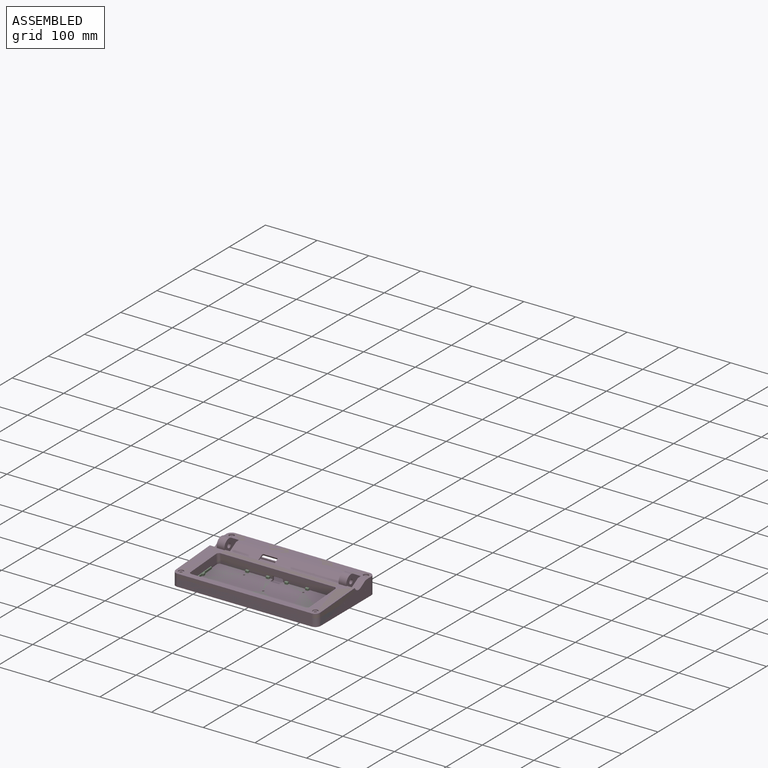
[diagram: assembled view]
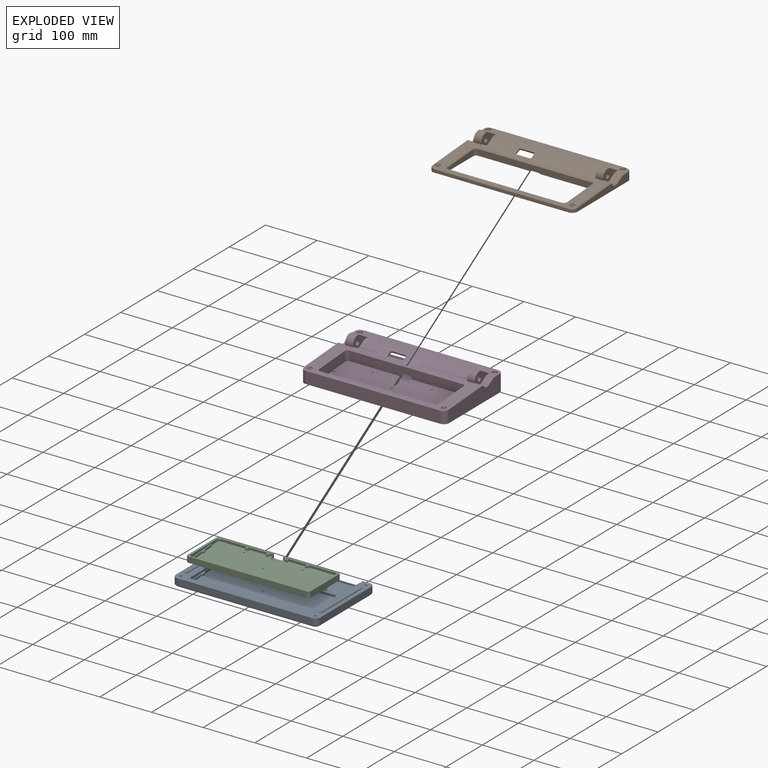
[diagram: exploded view]
GUIDED TOUR — FREECAD ASSEMBLY "BottomEnclosure_base_split_v2"

This assembly has 4 components, labeled P0..P3 below (a component is one placed body or linked part; the same part can appear more than once), held together by 0 modeled joints plus 6 derived contact edges. A joint is a constraint between two components; its type names the relative motion it leaves free:
  CONTACT — a derived adjacency edge — the two components touch in the source model (clearance under 2% of the assembly's diagonal); it is measured from the geometry, not a modeled constraint.
Axis/direction vectors are unit vectors and 'through' points are millimeter coordinates, both in the assembly's world frame.

MATES
  1. CONTACT "contact_0_1": P0 <-> P1, contact direction (0.000, 0.851, 0.525) through (131.84, -91.54, 15.00) mm (derived from contact, not a modeled constraint)
  2. CONTACT "contact_0_2": P0 <-> P2, contact direction (0.000, -1.000, 0.000) through (113.46, -87.52, 15.00) mm (derived from contact, not a modeled constraint)
  3. CONTACT "contact_0_3": P0 <-> P3, contact direction (0.000, -0.525, 0.851) through (-10.00, -4.50, 14.65) mm (derived from contact, not a modeled constraint)
  4. CONTACT "contact_1_2": P1 <-> P2, contact direction (0.000, -0.851, -0.525) through (-9.90, -8.22, 15.00) mm (derived from contact, not a modeled constraint)
  5. CONTACT "contact_1_3": P1 <-> P3, contact direction (0.000, -0.851, -0.525) through (-8.00, -8.31, 16.39) mm (derived from contact, not a modeled constraint)
  6. CONTACT "contact_2_3": P2 <-> P3, contact direction (0.000, 0.851, 0.525) through (-9.90, -4.50, 8.01) mm (derived from contact, not a modeled constraint)

ASSEMBLY ORDER
  1. P0 — the base component [order heuristic]
  2. P3 — core [order heuristic]
  3. P2 [order verified]
  4. P1 — core [order heuristic]
(P2 verified with a relaxed clearance tolerance: the source model stores slight part interference there.)
Order-tag legend:
  [order verified] — this step's position reverses a verified removal order: the component was checked to insert without passing through the ones already placed.
  [order heuristic] — the first 3 components form the assembly's core: parts whose collision-free extraction could not be verified, listed in mate-graph order.

Of the 4 components, 4 carry a construction recipe — the FreeCAD feature program (sketches with constraints, then the solid features that consume them) that regenerates the part from scratch, quoted from this document or from the linked companion document it references; the rest are supplied as boundary geometry only. The tour below walks the components in assembly order: each is shown spotlighted twice — in the assembled view, then in the exploded view, where a leader line traces a displaced component back to its assembled socket (components that stay in place when exploded have no leader line; saturated green if recipe-attached, orange if geometry-only; every other component desaturated gray) — followed by its recipe or geometry summary and the mates that hold it.
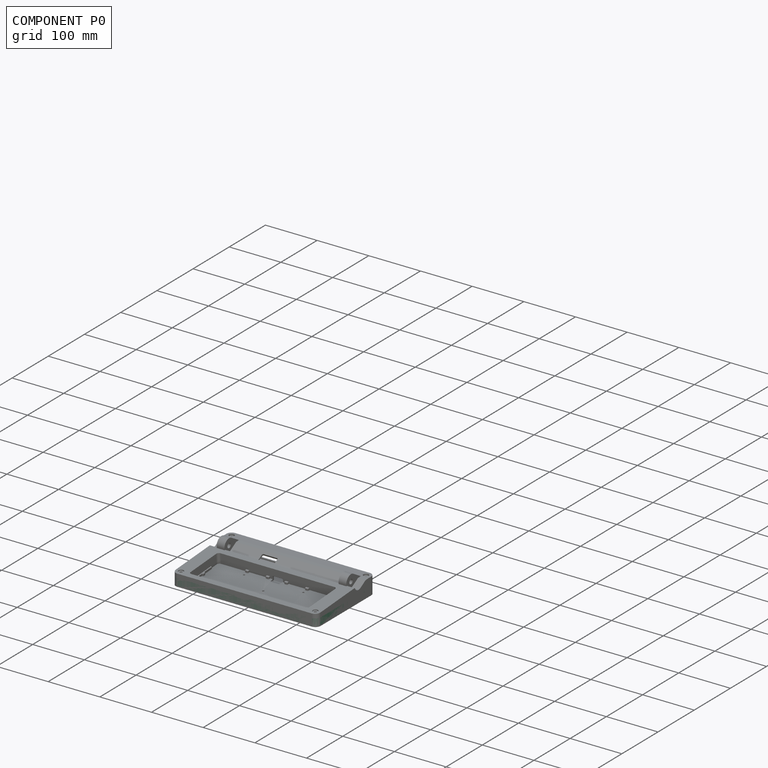
[diagram: component P0 — assembled]
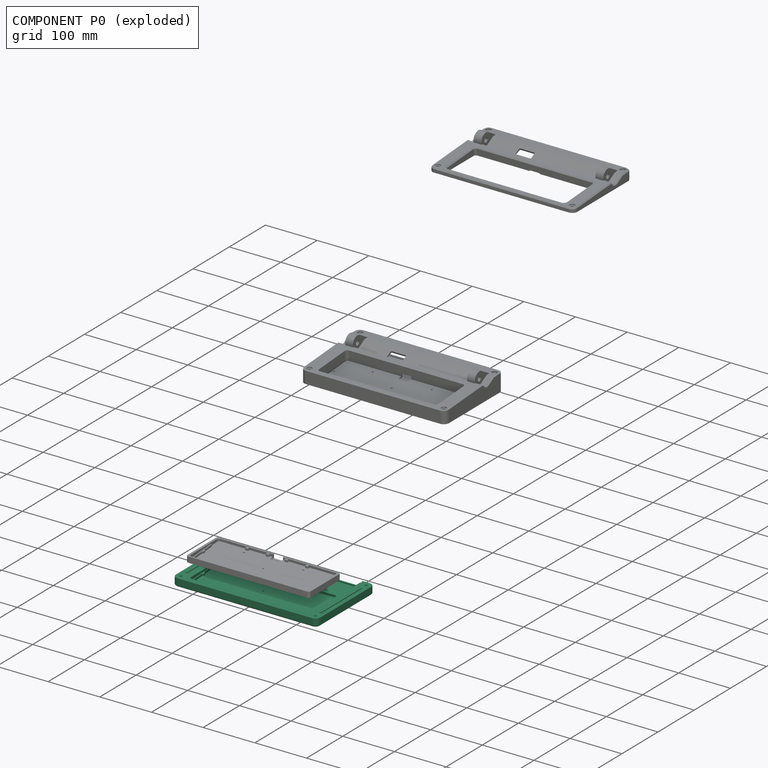
[diagram: component P0 — exploded]
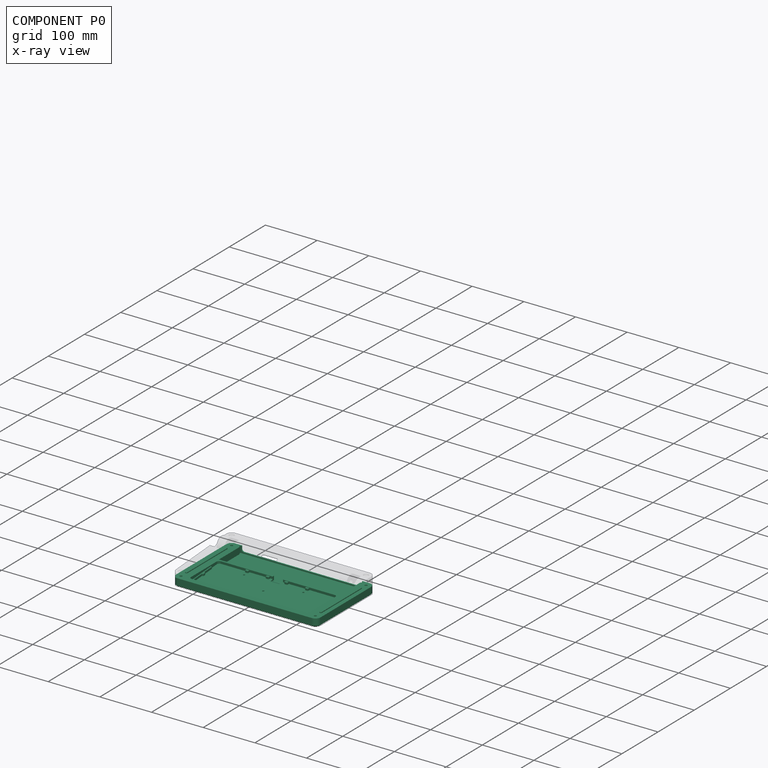
[diagram: component P0 — x-ray view]
COMPONENT P0 — recipe-attached ("Bottom", modeled in this document).
Held by: resting contact with P1 (derived edge); resting contact with P2 (derived edge); resting contact with P3 (derived edge).
Construction recipe (the document's own serialized feature program — sketch geometry with constraints, then the solid features built on it; lengths are millimeters unless a unit is written):

FEATURE [PartDesign::FeatureBase] BaseFeature
  BaseFeature = -> Slice_child0
  Suppressed = false
FEATURE [PartDesign::Chamfer] Chamfer
  Angle = 45
  Base = -> BaseFeature [Edge112]
  BaseFeature = -> BaseFeature
  ChamferType = 0
  FlipDirection = false
  Refine = true
  Size = 2
  Size2 = 1
  SupportTransform = false
  Suppressed = false
  UseAllEdges = false
FEATURE [Sketcher::SketchObject] Sketch001
  ArcFitTolerance = 1e-06
  AttachmentOffset = pos=(0,0,15) rot=(0,0,1;0rad)
  AttachmentSupport = -> [XY_Plane001]
  ExternalGeometry = -> [Chamfer]
  FullyConstrained = true
  MakeInternals = false
  MapMode = 5
  Placement = pos=(0,0,15) rot=(0,0,1;0rad)
  expr: .AttachmentOffset.Base.z = <<LocalVars>>.SplitHeight
  sketch-geometry (4):
    g0: ArcOfCircle CenterX=-130 CenterY=35 CenterZ=0 NormalX=0 NormalY=0 NormalZ=1 AngleXU=0 Radius=2 StartAngle=5e-16 EndAngle=3.14159
    g1: ArcOfCircle CenterX=-130 CenterY=-75 CenterZ=0 NormalX=0 NormalY=0 NormalZ=1 AngleXU=0 Radius=2 StartAngle=3.14159 EndAngle=6.28319
    g2: LineSegment StartX=-128 StartY=35 StartZ=0 EndX=-128 EndY=-75 EndZ=0
    g3: LineSegment StartX=-132 StartY=35 StartZ=0 EndX=-132 EndY=-75 EndZ=0
  constraints (10):
    c: Tangent(g0,g2) = 1.5708
    c: Tangent(g0,g3) = -1.5708
    c: Tangent(g1,g2) = 1.5708
    c: Tangent(g1,g3) = -1.5708
    c: Equal(g0,g1)
    c: Radius(g0) = 2
    c: Vertical(g2)
    c: DistanceY(g-4,g1) = 15
    c: Vertical(g-4,g1)
    c: DistanceY(g0,g-3) = 15
FEATURE [PartDesign::Pad] Pad
  BaseFeature = -> Chamfer
  Direction = (0,0,1)
  Length = 2
  Length2 = 10
  Profile = -> Sketch001
  ReferenceAxis = -> Sketch001 [N_Axis]
  Refine = true
  Suppressed = false
  Type = 0
FEATURE [PartDesign::Chamfer] Chamfer002
  Angle = 45
  Base = -> Pad [Edge171]
  BaseFeature = -> Pad
  ChamferType = 0
  FlipDirection = false
  Refine = true
  Size = 0.5
  Size2 = 1
  SupportTransform = false
  Suppressed = false
  UseAllEdges = false
FEATURE [PartDesign::Mirrored] Mirrored
  BaseFeature = -> Chamfer002
  MirrorPlane = -> YZ_Plane001
  Originals = -> [Pad,Chamfer002]
  Refine = true
  Suppressed = false
  TransformMode = 0
FEATURE [PartDesign::SubShapeBinder] Binder
  BindCopyOnChange = 0
  BindMode = 0
  ClaimChildren = false
  Context = -> Body001 [Binder.]
  Fuse = false
  MakeFace = true
  OffsetFill = false
  OffsetIntersection = false
  OffsetJoinType = 0
  OffsetOpenResult = false
  PartialLoad = false
  Refine = true
  Relative = true
  Support = -> [Mirrored[Edge176,Edge174,Edge171,Edge172]]
  _Version = 2
FEATURE [Sketcher::SketchObject] Sketch003
  ArcFitTolerance = 1e-06
  AttachmentSupport = -> [Mirrored]
  ExternalGeometry = -> [Mirrored]
  FullyConstrained = true
  MakeInternals = false
  MapMode = 5
  Placement = pos=(0,-0.762224,10.9003) rot=(1,0,0;0.069813rad)
  sketch-geometry (39):
    g0: LineSegment StartX=-115 StartY=-27.6515 StartZ=0 EndX=-115 EndY=-82.6515 EndZ=0
    g1: LineSegment StartX=-114 StartY=-27.6515 StartZ=0 EndX=-115 EndY=-27.6515 EndZ=0
    g2: LineSegment StartX=-35 StartY=-87.6515 StartZ=0 EndX=-35 EndY=-84.1515 EndZ=0
    g3: LineSegment StartX=-110 StartY=-87.6515 StartZ=0 EndX=-35 EndY=-87.6515 EndZ=0
    g4: LineSegment StartX=-113 StartY=-82.1515 StartZ=0 EndX=-113 EndY=-56.4015 EndZ=0
    g5: ArcOfCircle CenterX=-110 CenterY=-82.6515 CenterZ=0 NormalX=0 NormalY=0 NormalZ=1 AngleXU=0 Radius=5 StartAngle=3.14159 EndAngle=4.71239
    g6: ArcOfCircle CenterX=-114 CenterY=-28.6515 CenterZ=0 NormalX=0 NormalY=0 NormalZ=1 AngleXU=0 Radius=1 StartAngle=1.5e-15 EndAngle=1.5708
    g7: GeomPoint [constr] X=-113 Y=-27.6515 Z=0
    g8: ArcOfCircle CenterX=-36 CenterY=-84.1515 CenterZ=0 NormalX=0 NormalY=0 NormalZ=1 AngleXU=0 Radius=1 StartAngle=-6.2e-15 EndAngle=1.5708
    g9: LineSegment StartX=-36 StartY=-83.1515 StartZ=0 EndX=-112 EndY=-83.1515 EndZ=0
    g10: ArcOfCircle CenterX=-112 CenterY=-82.1515 CenterZ=0 NormalX=0 NormalY=0 NormalZ=1 AngleXU=0 Radius=1 StartAngle=3.14159 EndAngle=4.71239
    g11: LineSegment StartX=-21 StartY=-7.1515 StartZ=0 EndX=-15 EndY=-7.1515 EndZ=0
    g12: LineSegment StartX=-21 StartY=-7.1515 StartZ=0 EndX=-21 EndY=-10.1515 EndZ=0
    g13: LineSegment StartX=-20 StartY=-11.1515 StartZ=0 EndX=-16 EndY=-11.1515 EndZ=0
    g14: LineSegment StartX=-15 StartY=-10.1515 StartZ=0 EndX=-15 EndY=-7.1515 EndZ=0
    g15: ArcOfCircle CenterX=-20 CenterY=-10.1515 CenterZ=0 NormalX=0 NormalY=0 NormalZ=1 AngleXU=0 Radius=1 StartAngle=3.14159 EndAngle=4.71239
    g16: GeomPoint [constr] X=-21 Y=-11.1515 Z=0
    g17: ArcOfCircle CenterX=-16 CenterY=-10.1515 CenterZ=0 NormalX=0 NormalY=0 NormalZ=1 AngleXU=0 Radius=1 StartAngle=4.71239 EndAngle=6.28319
    g18: GeomPoint [constr] X=-15 Y=-11.1515 Z=0
    g19: LineSegment StartX=-110.5 StartY=-50.4015 StartZ=0 EndX=-110.5 EndY=-54.4015 EndZ=0
    g20: LineSegment StartX=-113 StartY=-48.4015 StartZ=0 EndX=-113 EndY=-28.6515 EndZ=0
    g21: ArcOfCircle CenterX=-111.5 CenterY=-50.4015 CenterZ=0 NormalX=0 NormalY=0 NormalZ=1 AngleXU=0 Radius=1 StartAngle=-3.064e-13 EndAngle=1.5708
    g22: ArcOfCircle CenterX=-111.5 CenterY=-54.4015 CenterZ=0 NormalX=0 NormalY=0 NormalZ=1 AngleXU=0 Radius=1 StartAngle=4.71239 EndAngle=6.28319
    g23: LineSegment StartX=-112 StartY=-49.4015 StartZ=0 EndX=-111.5 EndY=-49.4015 EndZ=0
    g24: LineSegment StartX=-112 StartY=-55.4015 StartZ=0 EndX=-111.5 EndY=-55.4015 EndZ=0
    g25: ArcOfCircle CenterX=-112 CenterY=-56.4015 CenterZ=0 NormalX=0 NormalY=0 NormalZ=1 AngleXU=0 Radius=1 StartAngle=1.5708 EndAngle=3.14159
    g26: GeomPoint [constr] X=-113 Y=-55.4015 Z=0
    g27: ArcOfCircle CenterX=-112 CenterY=-48.4015 CenterZ=0 NormalX=0 NormalY=0 NormalZ=1 AngleXU=0 Radius=1 StartAngle=3.14159 EndAngle=4.71239
    g28: GeomPoint [constr] X=-113 Y=-49.4015 Z=0
    g29: GeomPoint X=-18 Y=-7.1515 Z=0
    g30: LineSegment StartX=-61 StartY=-7.1515 StartZ=0 EndX=-55 EndY=-7.1515 EndZ=0
    g31: LineSegment StartX=-61 StartY=-7.1515 StartZ=0 EndX=-61 EndY=-10.1515 EndZ=0
    g32: LineSegment StartX=-60 StartY=-11.1515 StartZ=0 EndX=-56 EndY=-11.1515 EndZ=0
    g33: LineSegment StartX=-55 StartY=-10.1515 StartZ=0 EndX=-55 EndY=-7.1515 EndZ=0
    g34: ArcOfCircle CenterX=-60 CenterY=-10.1515 CenterZ=0 NormalX=0 NormalY=0 NormalZ=1 AngleXU=0 Radius=1 StartAngle=3.14159 EndAngle=4.71239
    g35: GeomPoint [constr] X=-61 Y=-11.1515 Z=0
    g36: ArcOfCircle CenterX=-56 CenterY=-10.1515 CenterZ=0 NormalX=0 NormalY=0 NormalZ=1 AngleXU=0 Radius=1 StartAngle=4.71239 EndAngle=6.28319
    g37: GeomPoint [constr] X=-55 Y=-11.1515 Z=0
    g38: GeomPoint X=-58 Y=-7.1515 Z=0
  constraints (92):
    c: Coincident(g1,g0)
    c: Vertical(g0)
    c: Horizontal(g1)
    c: Coincident(g3,g2)
    c: Vertical(g2)
    c: Coincident(g3,g-4)
    c: Coincident(g0,g-3)
    c: Tangent(g5,g3) = -1.5708
    c: Tangent(g5,g0) = -1.5708
    c: PointOnObject(g7,g1)
    c: PointOnObject(g7,g20)
    c: Tangent(g1,g6) = -1.5708
    c: Tangent(g2,g8) = -1.5708
    c: Vertical(g4)
    c: Horizontal(g9)
    c: DistanceX(g0,g7) = 2
    c: Radius(g6) = 1
    c: Equal(g6,g8)
    c: DistanceY(g3,g0) = 60
    c: Tangent(g9,g8) = -1.5708
    c: DistanceY(g2,g8) = 4.5
    c: Tangent(g10,g9) = 1.5708
    c: Tangent(g10,g4) = 1.5708
    c: Radius(g10) = 1
    c: DistanceX(g0,g2) = 80
    c: PointOnObject(g11,g-5)
    c: PointOnObject(g11,g-5)
    c: Coincident(g12,g11)
    c: Vertical(g12)
    c: Horizontal(g13)
    c: Coincident(g14,g11)
    c: Vertical(g14)
    c: PointOnObject(g16,g12)
    c: PointOnObject(g16,g13)
    c: Tangent(g12,g15) = -1.5708
    c: Tangent(g13,g15) = -1.5708
    c: PointOnObject(g18,g13)
    c: PointOnObject(g18,g14)
    c: Tangent(g13,g17) = -1.5708
    c: Tangent(g14,g17) = -1.5708
    c: Equal(g17,g15)
    c: Radius(g17) = 1
    c: DistanceY(g13,g11) = 4
    c: Vertical(g19)
    c: Vertical(g20)
    c: Tangent(g19,g21) = 1.5708
    c: Tangent(g19,g22) = 1.5708
    c: Equal(g22,g21)
    c: Radius(g22) = 1
    c: Tangent(g20,g6) = -1.5708
    c: Vertical(g28,g26)
    c: Horizontal(g24)
    c: Tangent(g24,g22) = -1.5708
    c: Tangent(g23,g21) = 1.5708
    c: Horizontal(g23)
    c: DistanceY(g28,g-6) = 2
    c: DistanceX(g0,g19) = 4.5
    c: DistanceY(g26,g28) = 6
    c: PointOnObject(g26,g4)
    c: PointOnObject(g26,g24)
    c: Tangent(g4,g25) = 1.5708
    c: Tangent(g24,g25) = 1.5708
    c: PointOnObject(g28,g20)
    c: PointOnObject(g28,g23)
    c: Tangent(g20,g27) = 1.5708
    c: Tangent(g23,g27) = -1.5708
    c: Equal(g27,g21)
    c: Equal(g22,g25)
    c: Symmetric(g11,g11,g29)
    c: DistanceX(g29,g-1) = 18
    c: DistanceX(g11,g11) = 6
    c: Coincident(g31,g30)
    c: Vertical(g31)
    c: Horizontal(g32)
    c: Coincident(g33,g30)
    c: Vertical(g33)
    c: PointOnObject(g35,g31)
    c: PointOnObject(g35,g32)
    c: Tangent(g31,g34) = -1.5708
    c: Tangent(g32,g34) = -1.5708
    c: PointOnObject(g37,g32)
    c: PointOnObject(g37,g33)
    c: Tangent(g32,g36) = -1.5708
    c: Tangent(g33,g36) = -1.5708
    c: Equal(g36,g34)
    c: Radius(g36) = 1
    c: DistanceY(g32,g30) = 4
    c: Symmetric(g30,g30,g38)
    c: DistanceX(g38,g-1) = 58
    c: DistanceX(g30,g30) = 6
    c: PointOnObject(g30,g-5)
    c: PointOnObject(g30,g-5)
FEATURE [PartDesign::Pad] Pad001
  BaseFeature = -> Mirrored
  Direction = (0,-0.0697565,0.997564)
  Length = 10
  Length2 = 10
  Profile = -> Binder
  Refine = true
  Reversed = true
  Suppressed = false
  Type = 1
FEATURE [PartDesign::Pad] Pad002
  BaseFeature = -> Pad001
  Direction = (0,-0.0697565,0.997564)
  Length = 3.8
  Length2 = 10
  Profile = -> Sketch003
  ReferenceAxis = -> Sketch003 [N_Axis]
  Refine = true
  Suppressed = false
  Type = 0
  expr: Length = 4 - 0.2
FEATURE [PartDesign::Mirrored] Mirrored002
  BaseFeature = -> Pad002
  MirrorPlane = -> YZ_Plane001
  Originals = -> [Pad002]
  Refine = true
  Suppressed = false
  TransformMode = 0
FEATURE [PartDesign::Body] Body001  label="Bottom"
  AllowCompound = false
  BaseFeature = -> Slice_child0
  Group = -> [BaseFeature,Chamfer,Sketch001,Pad,Chamfer002,Mirrored,Binder,Sketch003,Pad001,Pad002,Mirrored002]
  Origin = -> Origin001
  Tip = -> Mirrored002
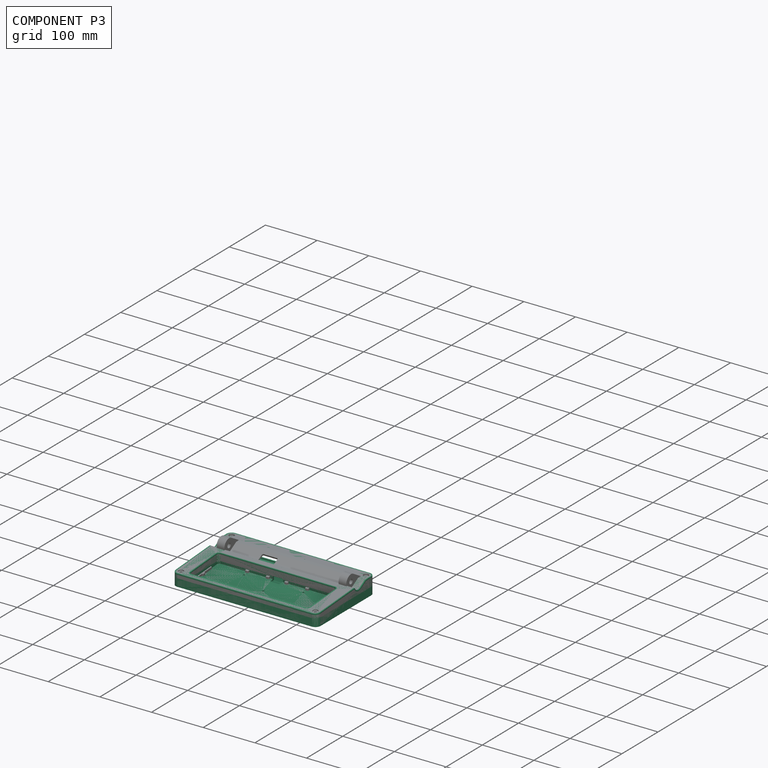
[diagram: component P3 — assembled]
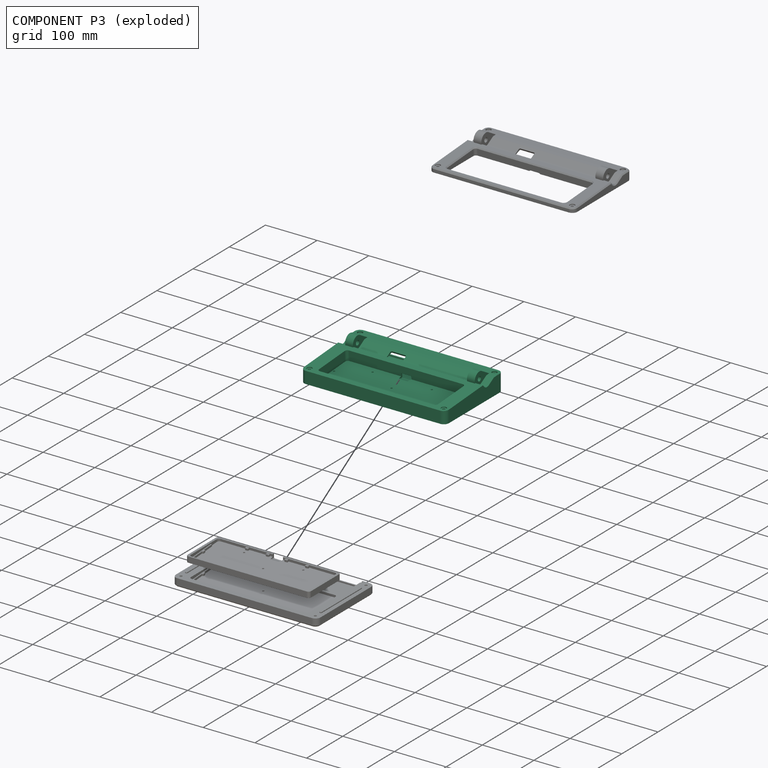
[diagram: component P3 — exploded]
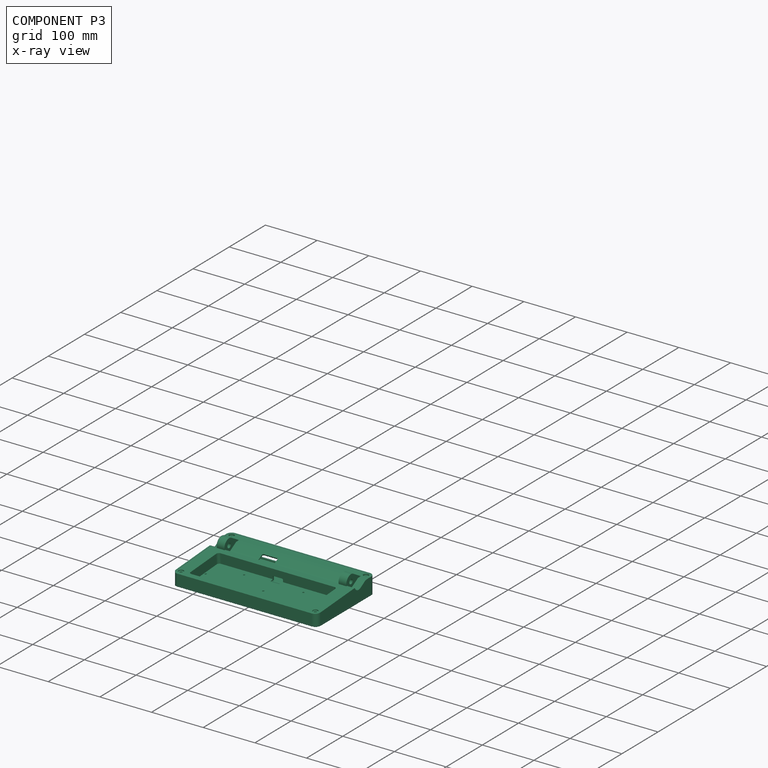
[diagram: component P3 — x-ray view]
COMPONENT P3 — recipe-attached ("Bottom Enclosure - AIR40", modeled in this document).
Held by: resting contact with P0 (derived edge); resting contact with P1 (derived edge); resting contact with P2 (derived edge).
Construction recipe (the document's own serialized feature program — sketch geometry with constraints, then the solid features built on it; lengths are millimeters unless a unit is written):

FEATURE [Sketcher::SketchObject] Sketch
  ArcFitTolerance = 1e-06
  AttachmentSupport = -> [YZ_Plane]
  FullyConstrained = true
  MakeInternals = false
  MapMode = 5
  Placement = pos=(0,0,0) rot=(0.57735,0.57735,0.57735;2.0944rad)
  expr: Constraints[1] = <<LocalVars>>.SplitHeight
  sketch-geometry (1):
    g0: LineSegment StartX=-150 StartY=15 StartZ=0 EndX=150 EndY=15 EndZ=0
  constraints (3):
    c: Symmetric(g0,g0,g-2)
    c: DistanceY(g-1,g0) = 15
    c: DistanceX(g0,g0) = 300
FEATURE [PartDesign::Body] Body  label="Bottom Enclosure Split Line"
  AllowCompound = false
  Group = -> [Sketch]
  Origin = -> Origin
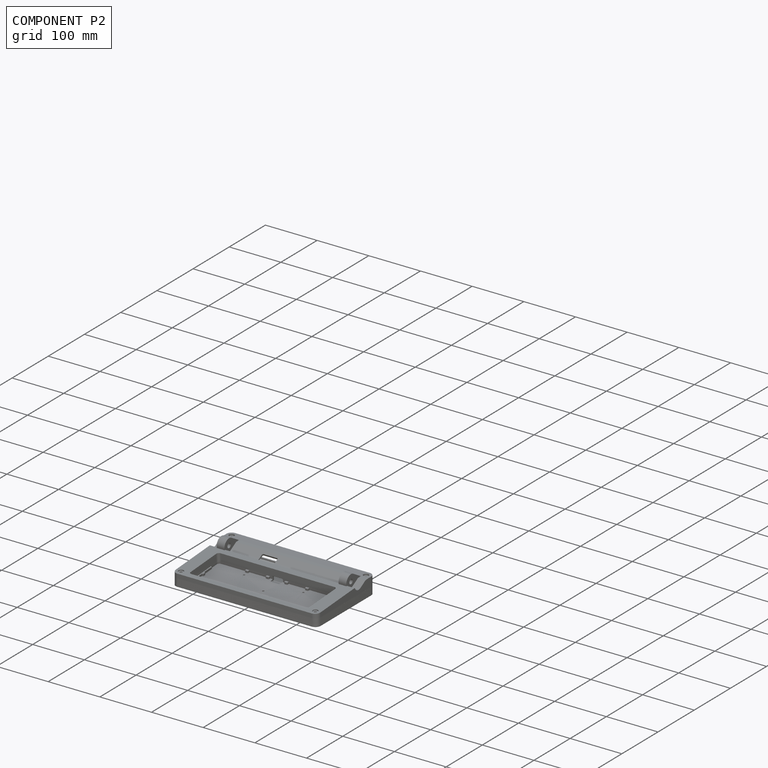
[diagram: component P2 — assembled]
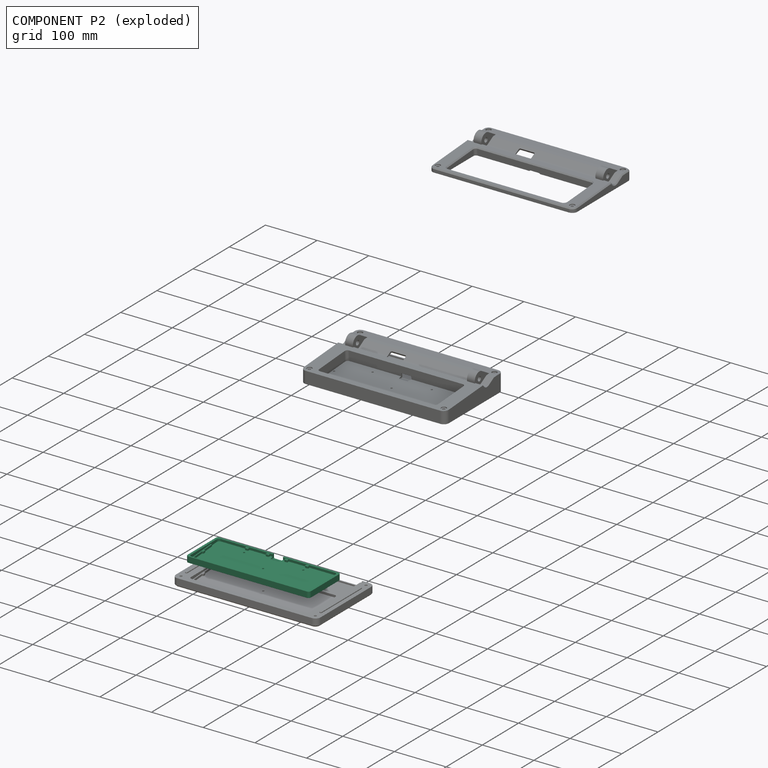
[diagram: component P2 — exploded]
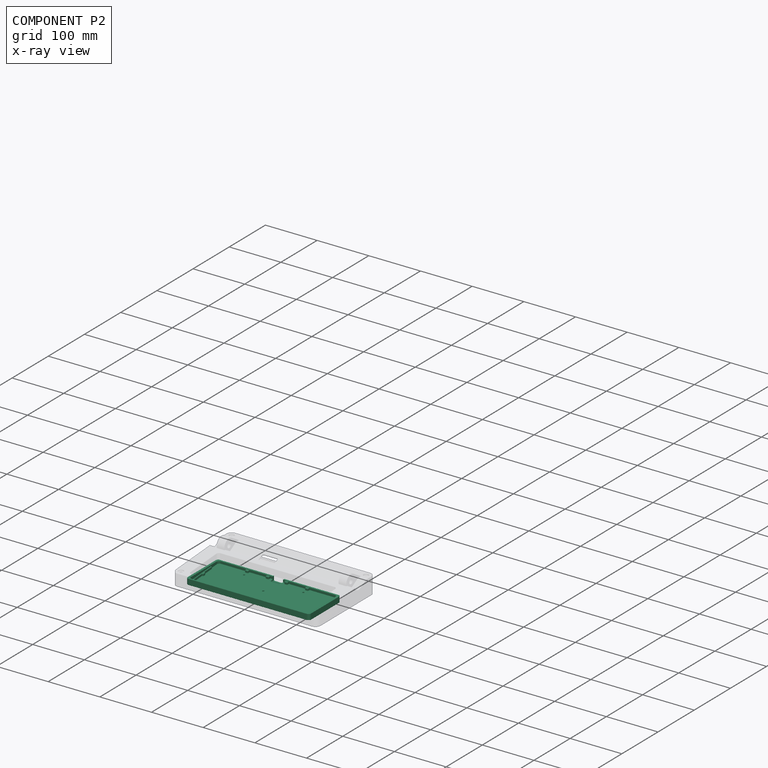
[diagram: component P2 — x-ray view]
COMPONENT P2 — recipe-attached ("ToPrint", modeled in this document).
Held by: resting contact with P0 (derived edge); resting contact with P1 (derived edge); resting contact with P3 (derived edge).
Construction recipe (the document's own serialized feature program — sketch geometry with constraints, then the solid features built on it; lengths are millimeters unless a unit is written):

FEATURE [PartDesign::Boolean] Boolean
  Group = -> [Binder001]
  Refine = true
  Suppressed = false
  Type = 0
  UsePlacement = true
FEATURE [Sketcher::SketchObject] Sketch004
  ArcFitTolerance = 1e-06
  AttachmentSupport = -> [XY_Plane003]
  FullyConstrained = false
  MakeInternals = false
  MapMode = 5
  sketch-geometry (18):
    g0: LineSegment StartX=-114.315 StartY=-91.6893 StartZ=0 EndX=114.315 EndY=-91.6893 EndZ=0
    g1: LineSegment StartX=119.315 StartY=-86.6893 StartZ=0 EndX=119.315 EndY=-9.14936 EndZ=0
    g2: LineSegment StartX=114.315 StartY=-4.14936 StartZ=0 EndX=-114.315 EndY=-4.14936 EndZ=0
    g3: LineSegment StartX=-119.315 StartY=-9.14936 StartZ=0 EndX=-119.315 EndY=-86.6893 EndZ=0
    g4: GeomPoint [constr] X=0 Y=-47.9193 Z=0
    g5: ArcOfCircle CenterX=-114.315 CenterY=-9.14936 CenterZ=0 NormalX=0 NormalY=0 NormalZ=1 AngleXU=0 Radius=5 StartAngle=1.5708 EndAngle=3.14159
    g6: GeomPoint [constr] X=-119.315 Y=-4.14936 Z=0
    g7: ArcOfCircle CenterX=-114.315 CenterY=-86.6893 CenterZ=0 NormalX=0 NormalY=0 NormalZ=1 AngleXU=0 Radius=5 StartAngle=3.14159 EndAngle=4.71239
    g8: GeomPoint [constr] X=-119.315 Y=-91.6893 Z=0
    g9: ArcOfCircle CenterX=114.315 CenterY=-86.6893 CenterZ=0 NormalX=0 NormalY=0 NormalZ=1 AngleXU=0 Radius=5 StartAngle=4.71239 EndAngle=6.28319
    g10: GeomPoint [constr] X=119.315 Y=-91.6893 Z=0
    g11: ArcOfCircle CenterX=114.315 CenterY=-9.14936 CenterZ=0 NormalX=0 NormalY=0 NormalZ=1 AngleXU=0 Radius=5 StartAngle=0 EndAngle=1.5708
    g12: GeomPoint [constr] X=119.315 Y=-4.14936 Z=0
    g13: LineSegment StartX=-149.795 StartY=-129.971 StartZ=0 EndX=149.795 EndY=-129.971 EndZ=0
    g14: LineSegment StartX=149.795 StartY=-129.971 StartZ=0 EndX=149.795 EndY=78.3938 EndZ=0
    g15: LineSegment StartX=149.795 StartY=78.3938 StartZ=0 EndX=-149.795 EndY=78.3938 EndZ=0
    g16: LineSegment StartX=-149.795 StartY=78.3938 StartZ=0 EndX=-149.795 EndY=-129.971 EndZ=0
    g17: GeomPoint [constr] X=0 Y=-25.7888 Z=0
  constraints (36):
    c: Horizontal(g0)
    c: Horizontal(g2)
    c: Vertical(g1)
    c: Vertical(g3)
    c: Symmetric(g12,g8,g4)
    c: PointOnObject(g4,g-2)
    c: PointOnObject(g6,g2)
    c: PointOnObject(g6,g3)
    c: Tangent(g2,g5) = -1.5708
    c: Tangent(g3,g5) = -1.5708
    c: PointOnObject(g8,g0)
    c: PointOnObject(g8,g3)
    c: Tangent(g0,g7) = -1.5708
    c: Tangent(g3,g7) = -1.5708
    c: PointOnObject(g10,g0)
    c: PointOnObject(g10,g1)
    c: Tangent(g0,g9) = -1.5708
    c: Tangent(g1,g9) = -1.5708
    c: PointOnObject(g12,g1)
    c: PointOnObject(g12,g2)
    c: Tangent(g1,g11) = -1.5708
    c: Tangent(g2,g11) = -1.5708
    c: Equal(g11,g9)
    c: Equal(g9,g7)
    c: Equal(g7,g5)
    c: Radius(g5) = 5
    c: Coincident(g13,g14)
    c: Coincident(g14,g15)
    c: Coincident(g15,g16)
    c: Coincident(g16,g13)
    c: Horizontal(g13)
    c: Horizontal(g15)
    c: Vertical(g14)
    c: Vertical(g16)
    c: Symmetric(g15,g13,g17)
    c: PointOnObject(g17,g-2)
FEATURE [PartDesign::Pocket] Pocket001
  BaseFeature = -> Boolean
  Direction = (0,0,-1)
  Length = 5
  Length2 = 5
  Profile = -> Sketch004
  ReferenceAxis = -> Sketch004 [N_Axis]
  Refine = true
  Reversed = true
  Suppressed = false
  Type = 1
FEATURE [PartDesign::Pocket] Pocket002
  BaseFeature = -> Pocket001
  Direction = (0,0,1)
  Length = 4
  Length2 = 5
  Profile = -> Pocket001 [Face46]
  Refine = true
  Suppressed = false
  Type = 0
FEATURE [PartDesign::Body] Body003  label="ToPrint"
  AllowCompound = false
  Group = -> [Boolean,Sketch004,Pocket001,Pocket002]
  Origin = -> Origin003
  Tip = -> Pocket002
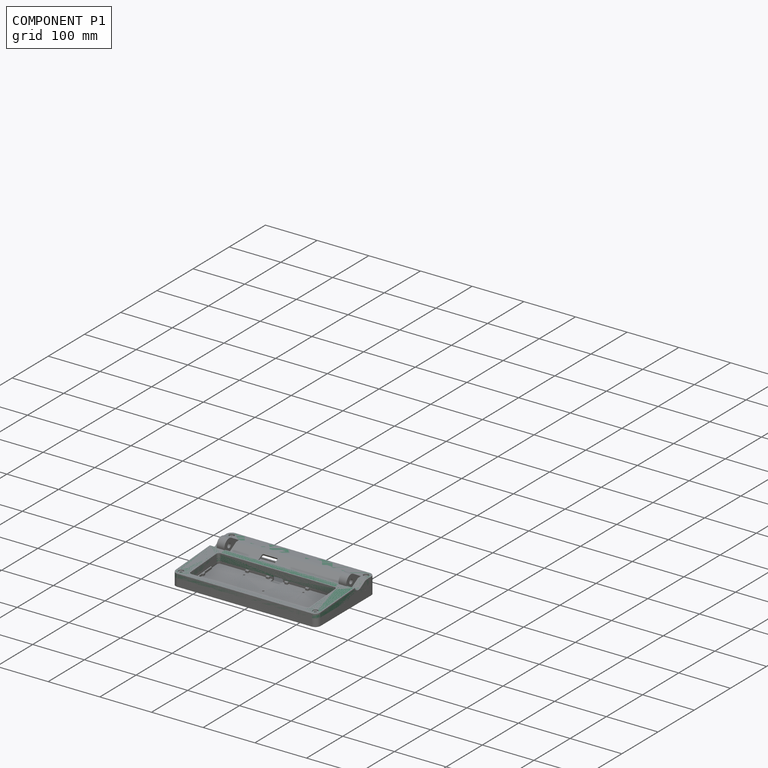
[diagram: component P1 — assembled]
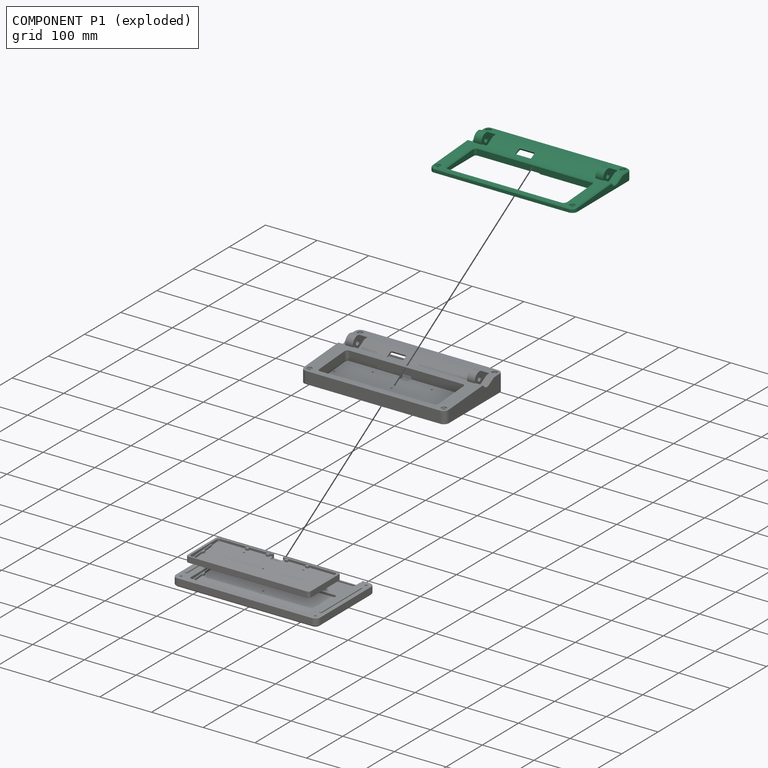
[diagram: component P1 — exploded]
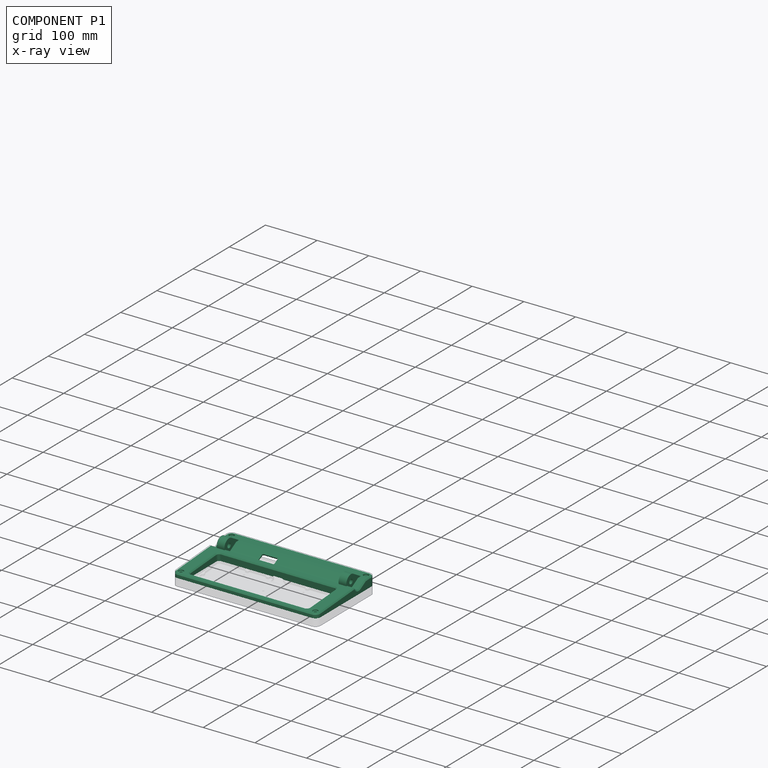
[diagram: component P1 — x-ray view]
COMPONENT P1 — recipe-attached ("Top", modeled in this document).
Held by: resting contact with P0 (derived edge); resting contact with P2 (derived edge); resting contact with P3 (derived edge).
Construction recipe (the document's own serialized feature program — sketch geometry with constraints, then the solid features built on it; lengths are millimeters unless a unit is written):

FEATURE [PartDesign::FeatureBase] BaseFeature001
  BaseFeature = -> Slice_child1
  Suppressed = false
FEATURE [PartDesign::Chamfer] Chamfer001
  Angle = 45
  Base = -> BaseFeature001 [Edge122,Edge114,Edge117,Edge130,Edge84]
  BaseFeature = -> BaseFeature001
  ChamferType = 0
  FlipDirection = false
  Refine = true
  Size = 2
  Size2 = 1
  SupportTransform = false
  Suppressed = false
  UseAllEdges = false
FEATURE [Sketcher::SketchObject] Sketch002
  ArcFitTolerance = 1e-06
  AttachmentOffset = pos=(0,0,15) rot=(0,0,1;0rad)
  AttachmentSupport = -> [XY_Plane002]
  ExternalGeometry = -> [Chamfer001]
  FullyConstrained = true
  MakeInternals = false
  MapMode = 5
  Placement = pos=(0,0,15) rot=(0,0,1;0rad)
  expr: .AttachmentOffset.Base.z = <<LocalVars>>.SplitHeight
  sketch-geometry (4):
    g0: ArcOfCircle CenterX=-130 CenterY=35 CenterZ=0 NormalX=0 NormalY=0 NormalZ=1 AngleXU=0 Radius=2.2 StartAngle=-2.7e-15 EndAngle=3.14159
    g1: ArcOfCircle CenterX=-130 CenterY=-75 CenterZ=0 NormalX=0 NormalY=0 NormalZ=1 AngleXU=0 Radius=2.2 StartAngle=3.14159 EndAngle=6.28319
    g2: LineSegment StartX=-127.8 StartY=35 StartZ=0 EndX=-127.8 EndY=-75 EndZ=0
    g3: LineSegment StartX=-132.2 StartY=35 StartZ=0 EndX=-132.2 EndY=-75 EndZ=0
  constraints (10):
    c: Tangent(g0,g2) = 1.5708
    c: Tangent(g0,g3) = -1.5708
    c: Tangent(g1,g2) = 1.5708
    c: Tangent(g1,g3) = -1.5708
    c: Equal(g0,g1)
    c: Radius(g0) = 2.2
    c: Vertical(g2)
    c: Vertical(g-4,g1)
    c: DistanceY(g-4,g1) = 15
    c: DistanceY(g0,g-3) = 15
FEATURE [PartDesign::Pocket] Pocket
  BaseFeature = -> Chamfer001
  Direction = (0,0,-1)
  Length = 3
  Length2 = 5
  Profile = -> Sketch002
  ReferenceAxis = -> Sketch002 [N_Axis]
  Refine = true
  Reversed = true
  Suppressed = false
  Type = 0
FEATURE [PartDesign::Mirrored] Mirrored001
  BaseFeature = -> Pocket
  MirrorPlane = -> YZ_Plane002
  Originals = -> [Pocket]
  Refine = true
  Suppressed = false
  TransformMode = 0
FEATURE [PartDesign::Body] Body002  label="Top"
  AllowCompound = false
  BaseFeature = -> Slice_child1
  Group = -> [BaseFeature001,Chamfer001,Sketch002,Pocket,Mirrored001]
  Origin = -> Origin002
  Tip = -> Mirrored001
PROVENANCE & LICENSES
Assembly and component geometry: a FreeCAD (.FCStd) document from a public repository crawl; components, placements and joints were extracted with FreeCAD and each solid tessellated.
Construction recipes: the document's own serialized feature recipes (and, for linked parts, the recipes of companion documents from the same project).
License: as declared in the source repository (recorded in the dataset sidecar).
Joints: native FreeCAD joints and A2plus constraints are mapped to standard mate types; edges marked 'derived from contact' connect touching components and are measured from the geometry, not modeled.
Verification: 4 of this assembly's 4 components carry a construction recipe (4 from this document itself); the rest are geometry-only. Every component's tessellation passed the extraction mesh gates (mesh-volume checksum against the B-rep where available, bounding-box inflation <= 2%).
Renders: orthographic iso camera (az 35 / el 25); the floor grid conveys scale (grid pitch printed in each image; no ruler). In the exploded view each component is displaced by its stored offset vector: the offsets alone carry the explosion direction (mate normal/axis signs are not orientation cues and do not encode it), and separation distances are assigned per mate-chain, not proportionally to assembly-order depth.
